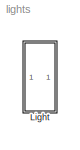
MODEL lights
KIND library
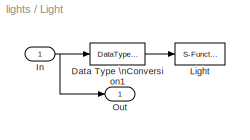
BLOCK [SubSystem] Light
  MaskDescription = Place this light block on a boolean signal and it will indicate the signal's value as green when it is true, and red when false.  Non-boolean signals are treated as false if equal to zero, and true otherwise.  Note that the input signal is passed straight through to the output of this block.  For signals that are connected to trigger ports, an automatic delay of 50 ms is added when the trigger fir...<+3ch>
  MaskDisplay = patch([0 w w 0],[h h 0 0],[0.7 0.7, 0.7])\npatch(x1,y1,c1)\npatch(x2,y2,c2)
  MaskEnableString = on
  MaskIconFrame = off
  MaskIconOpaque = on
  MaskIconRotate = none
  MaskIconUnits = autoscale
  MaskInitialization = s = get_param(gcbh, 'position'); w = s(3)-s(1);h = s(4)-s(2);\nr = min(w, h/2)/2;ang = 0:0.1:2*pi;\nx1 = r*sin(ang)+w/2; y1 = r*cos(ang)+0.75*h;\nx2 = r*sin(ang)+w/2; y2 = r*cos(ang)+0.25*h;\n\nif strcmp(state,'Stop')\n c1 = [1 0 0]; c2 = [0 0 0];\nelse\n c1 = [0 0 0]; c2 = [0 1 0];\nend
  MaskPromptString = State
  MaskSelfModifiable = on
  MaskStyleString = popup(Stop|Go)
  MaskToolTipString = on
  MaskTunableValueString = on
  MaskType = Light
  MaskValueString = Stop
  MaskVariables = state=&1;
  MaskVisibilityString = on
  MinAlgLoopOccurrences = off
  Ports = [1, 1]
  PropExecContextAcrossSSBoundary = on
  RTWSystemCode = Auto
  TreatAsAtomicUnit = off
BLOCK [DataTypeConversion] Light/Data Type \nConversion1
  OutDataTypeMode = double
BLOCK [Inport] Light/In
  IconDisplay = Port number
  LatchInput = off
  Port = 1
BLOCK [S-Function] Light/Light
  FunctionName = slight
  Ports = [1]
BLOCK [Outport] Light/Out
  IconDisplay = Port number
LINE Light/Data Type \nConversion1:1 -> Light/Light:1
NET Light/In:1 -> Light/Data Type \nConversion1:1, Light/Out:1
note: NET lines group one-source signal fan-out (src -> all destinations, sorted); 1:1 wires keep LINE
